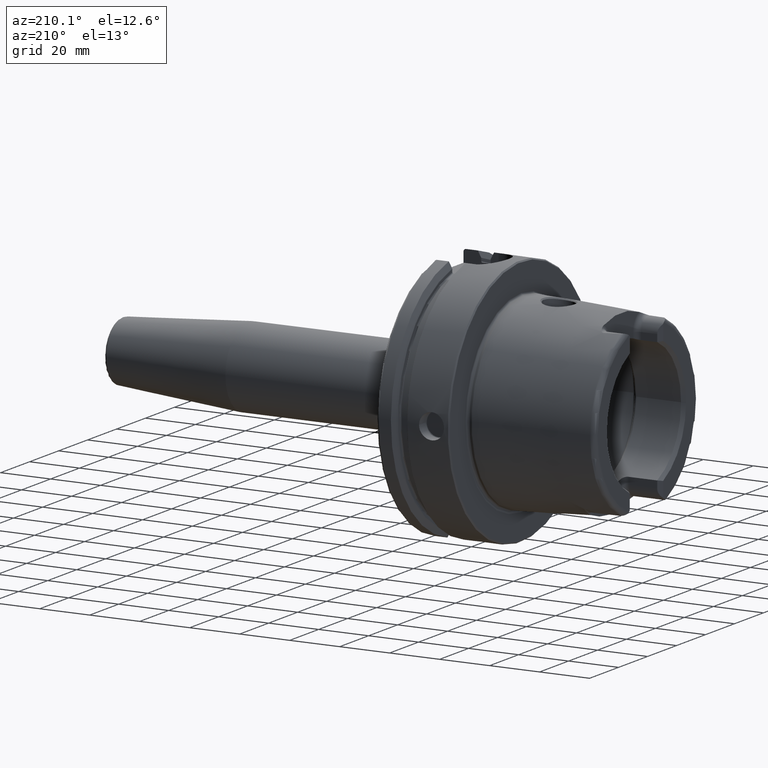
[diagram: clean part render]
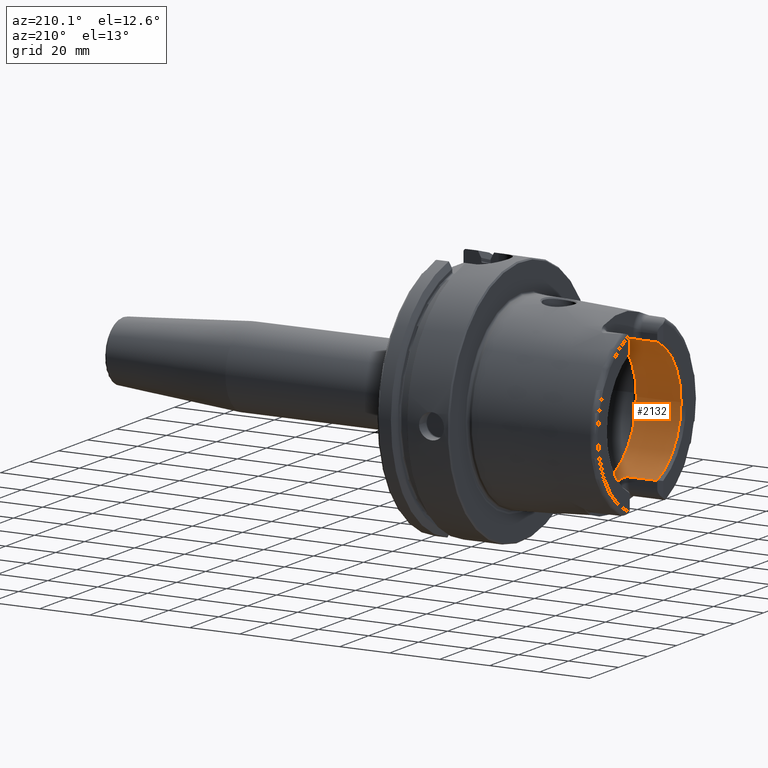
[diagram: same view with one face highlighted and labeled with its STEP entity id]
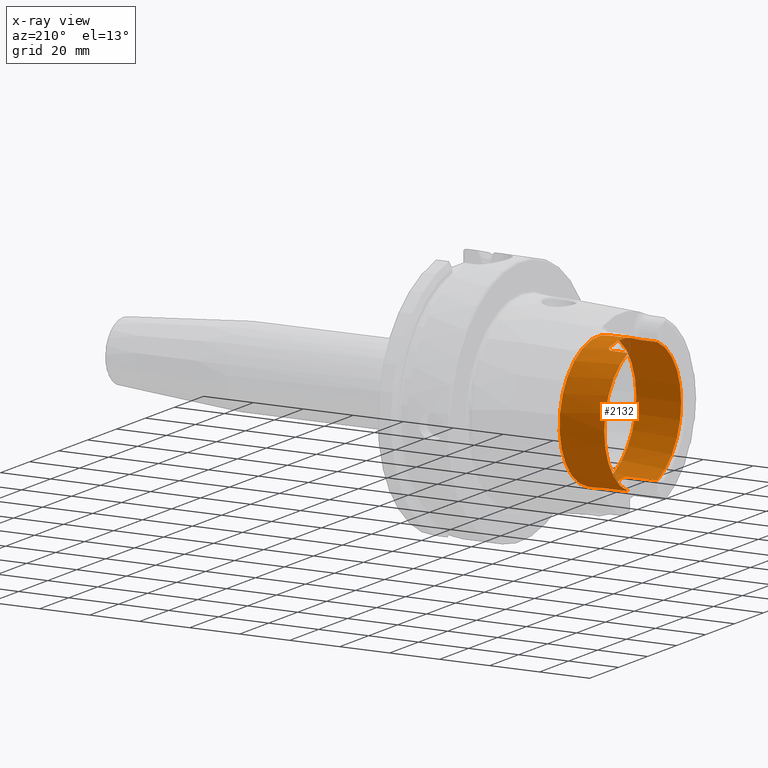
[diagram: x-ray of the same camera — body ghosted, the highlighted face saturated]
A machine part, auxiliary view. The second image highlights one B-rep face of the part: STEP entity #2132.
The next image is the same camera in x-ray: the body ghosted, the highlighted face saturated — about 1% of this face is hidden behind the body in this view.
In plain terms, the highlighted cylindrical surface (bore or boss wall) has radius 26.5 mm, axis along (-1, 0, 0).
Its self-contained STEP definition (entity closure, byte-faithful):
#80=B_SPLINE_CURVE_WITH_KNOTS('',3,(#4450,#4451,#4452,#4453,#4454,#4455,
#4456,#4457,#4458,#4459),.UNSPECIFIED.,.F.,.F.,(4,2,2,2,4),(0.307245873696209,
0.387318131676521,0.467390389656833,0.542677307505841,0.617964225354849),
 .UNSPECIFIED.);
#81=B_SPLINE_CURVE_WITH_KNOTS('',3,(#4468,#4469,#4470,#4471,#4472,#4473,
#4474,#4475,#4476,#4477),.UNSPECIFIED.,.F.,.F.,(4,2,2,2,4),(0.61796422535485,
0.694491364966707,0.771018504578565,0.849854597041439,0.928690689504313),
 .UNSPECIFIED.);
#82=B_SPLINE_CURVE_WITH_KNOTS('',3,(#4490,#4491,#4492,#4493,#4494,#4495,
#4496,#4497,#4498,#4499),.UNSPECIFIED.,.F.,.F.,(4,2,2,2,4),(0.617964225354849,
0.693251143203857,0.768538061052865,0.848610319033177,0.928682577013489),
 .UNSPECIFIED.);
#83=B_SPLINE_CURVE_WITH_KNOTS('',3,(#4519,#4520,#4521,#4522,#4523,#4524,
#4525,#4526,#4527,#4528),.UNSPECIFIED.,.F.,.F.,(4,2,2,2,4),(0.307245873696209,
0.387318131676521,0.467390389656833,0.542677307505841,0.617964225354849),
 .UNSPECIFIED.);
#206=CYLINDRICAL_SURFACE('',#2396,26.5);
#310=FACE_OUTER_BOUND('',#442,.T.);
#442=EDGE_LOOP('',(#1896,#1897,#1898,#1899,#1900,#1901,#1902,#1903,#1904,
#1905,#1906,#1907,#1908,#1909,#1910,#1911,#1912));
#495=LINE('',#3234,#603);
#503=LINE('',#3309,#611);
#507=LINE('',#3373,#615);
#566=LINE('',#4515,#674);
#570=LINE('',#4563,#678);
#603=VECTOR('',#2597,10.);
#611=VECTOR('',#2643,10.);
#615=VECTOR('',#2665,10.);
#674=VECTOR('',#2944,10.);
#678=VECTOR('',#2988,26.5);
#724=CIRCLE('',#2250,26.5);
#725=CIRCLE('',#2251,26.5);
#788=CIRCLE('',#2375,26.5);
#793=CIRCLE('',#2387,26.5);
#794=CIRCLE('',#2390,26.5);
#797=CIRCLE('',#2397,26.5);
#798=CIRCLE('',#2398,26.5);
#869=VERTEX_POINT('',#3224);
#872=VERTEX_POINT('',#3232);
#881=VERTEX_POINT('',#3281);
#883=VERTEX_POINT('',#3287);
#884=VERTEX_POINT('',#3289);
#890=VERTEX_POINT('',#3307);
#896=VERTEX_POINT('',#3340);
#901=VERTEX_POINT('',#3372);
#1008=VERTEX_POINT('',#4448);
#1010=VERTEX_POINT('',#4467);
#1014=VERTEX_POINT('',#4488);
#1015=VERTEX_POINT('',#4489);
#1017=VERTEX_POINT('',#4509);
#1019=VERTEX_POINT('',#4560);
#1020=VERTEX_POINT('',#4561);
#1100=EDGE_CURVE('',#869,#872,#495,.T.);
#1113=EDGE_CURVE('',#883,#884,#724,.T.);
#1114=EDGE_CURVE('',#884,#881,#725,.T.);
#1123=EDGE_CURVE('',#883,#890,#503,.T.);
#1136=EDGE_CURVE('',#901,#896,#507,.T.);
#1294=EDGE_CURVE('',#1008,#890,#80,.T.);
#1298=EDGE_CURVE('',#901,#1010,#81,.T.);
#1304=EDGE_CURVE('',#1014,#1015,#82,.T.);
#1310=EDGE_CURVE('',#1017,#1015,#788,.T.);
#1313=EDGE_CURVE('',#1014,#881,#566,.T.);
#1316=EDGE_CURVE('',#1017,#872,#83,.T.);
#1320=EDGE_CURVE('',#1008,#1010,#793,.T.);
#1322=EDGE_CURVE('',#869,#896,#794,.T.);
#1326=EDGE_CURVE('',#1019,#1020,#797,.T.);
#1327=EDGE_CURVE('',#1019,#884,#570,.T.);
#1328=EDGE_CURVE('',#1020,#1019,#798,.T.);
#1896=ORIENTED_EDGE('',*,*,#1326,.F.);
#1897=ORIENTED_EDGE('',*,*,#1327,.T.);
#1898=ORIENTED_EDGE('',*,*,#1113,.F.);
#1899=ORIENTED_EDGE('',*,*,#1123,.T.);
#1900=ORIENTED_EDGE('',*,*,#1294,.F.);
#1901=ORIENTED_EDGE('',*,*,#1320,.T.);
#1902=ORIENTED_EDGE('',*,*,#1298,.F.);
#1903=ORIENTED_EDGE('',*,*,#1136,.T.);
#1904=ORIENTED_EDGE('',*,*,#1322,.F.);
#1905=ORIENTED_EDGE('',*,*,#1100,.T.);
#1906=ORIENTED_EDGE('',*,*,#1316,.F.);
#1907=ORIENTED_EDGE('',*,*,#1310,.T.);
#1908=ORIENTED_EDGE('',*,*,#1304,.F.);
#1909=ORIENTED_EDGE('',*,*,#1313,.T.);
#1910=ORIENTED_EDGE('',*,*,#1114,.F.);
#1911=ORIENTED_EDGE('',*,*,#1327,.F.);
#1912=ORIENTED_EDGE('',*,*,#1328,.F.);
#2132=ADVANCED_FACE('',(#310),#206,.F.);
#2250=AXIS2_PLACEMENT_3D('',#3290,#2621,#2622);
#2251=AXIS2_PLACEMENT_3D('',#3291,#2623,#2624);
#2375=AXIS2_PLACEMENT_3D('',#4510,#2937,#2938);
#2387=AXIS2_PLACEMENT_3D('',#4537,#2965,#2966);
#2390=AXIS2_PLACEMENT_3D('',#4552,#2971,#2972);
#2396=AXIS2_PLACEMENT_3D('',#4559,#2984,#2985);
#2397=AXIS2_PLACEMENT_3D('',#4562,#2986,#2987);
#2398=AXIS2_PLACEMENT_3D('',#4564,#2989,#2990);
#2597=DIRECTION('',(1.,0.,0.));
#2621=DIRECTION('center_axis',(1.,0.,0.));
#2622=DIRECTION('ref_axis',(0.,-1.,0.));
#2623=DIRECTION('center_axis',(1.,0.,0.));
#2624=DIRECTION('ref_axis',(0.,-1.,0.));
#2643=DIRECTION('',(1.,0.,0.));
#2665=DIRECTION('',(-1.,0.,0.));
#2937=DIRECTION('center_axis',(-1.,0.,0.));
#2938=DIRECTION('ref_axis',(0.,1.,0.));
#2944=DIRECTION('',(-1.,0.,0.));
#2965=DIRECTION('center_axis',(-1.,0.,0.));
#2966=DIRECTION('ref_axis',(0.,1.,0.));
#2971=DIRECTION('center_axis',(1.,0.,0.));
#2972=DIRECTION('ref_axis',(0.,-1.,0.));
#2984=DIRECTION('center_axis',(-1.,0.,0.));
#2985=DIRECTION('ref_axis',(0.,1.,0.));
#2986=DIRECTION('center_axis',(-1.,0.,0.));
#2987=DIRECTION('ref_axis',(0.,0.,1.));
#2988=DIRECTION('',(-1.,0.,0.));
#2989=DIRECTION('center_axis',(-1.,0.,0.));
#2990=DIRECTION('ref_axis',(0.,0.,1.));
#3224=CARTESIAN_POINT('',(-48.5,10.01,-24.5367051577835));
#3232=CARTESIAN_POINT('',(-37.,10.01,-24.5367051577835));
#3234=CARTESIAN_POINT('',(-40.2903629710818,10.01,-24.5367051577835));
#3281=CARTESIAN_POINT('',(-48.5,-10.01,-24.5367051577835));
#3287=CARTESIAN_POINT('',(-48.5,-10.01,24.5367051577835));
#3289=CARTESIAN_POINT('',(-48.5,-26.5,3.24531401774049E-15));
#3290=CARTESIAN_POINT('Origin',(-48.5,0.,0.));
#3291=CARTESIAN_POINT('Origin',(-48.5,0.,0.));
#3307=CARTESIAN_POINT('',(-42.,-10.01,24.5367051577835));
#3309=CARTESIAN_POINT('',(-40.2903629710818,-10.01,24.5367051577835));
#3340=CARTESIAN_POINT('',(-48.5,10.01,24.5367051577835));
#3372=CARTESIAN_POINT('',(-42.,10.01,24.5367051577835));
#3373=CARTESIAN_POINT('',(-40.2903629710818,10.01,24.5367051577835));
#4448=CARTESIAN_POINT('',(-40.,-8.01,25.2604414054862));
#4450=CARTESIAN_POINT('Ctrl Pts',(-40.,-8.01,25.2604414054862));
#4451=CARTESIAN_POINT('Ctrl Pts',(-40.,-8.26442271458071,25.1797648285777));
#4452=CARTESIAN_POINT('Ctrl Pts',(-40.0513332778729,-8.53503831367686,25.0892968127514));
#4453=CARTESIAN_POINT('Ctrl Pts',(-40.2604388709541,-9.03317850506395,24.9142806373643));
#4454=CARTESIAN_POINT('Ctrl Pts',(-40.4182028025644,-9.2607746884821,24.8299262887475));
#4455=CARTESIAN_POINT('Ctrl Pts',(-40.7762398849713,-9.61038047170956,24.6966285655713));
#4456=CARTESIAN_POINT('Ctrl Pts',(-40.996584045901,-9.75993653512726,24.6374761492843));
#4457=CARTESIAN_POINT('Ctrl Pts',(-41.4829332858843,-9.95981108540838,24.557356442995));
#4458=CARTESIAN_POINT('Ctrl Pts',(-41.74904360717,-10.01,24.5367051577835));
#4459=CARTESIAN_POINT('Ctrl Pts',(-42.,-10.01,24.5367051577835));
#4467=CARTESIAN_POINT('',(-40.,8.01,25.2604414054862));
#4468=CARTESIAN_POINT('Ctrl Pts',(-42.,10.01,24.5367051577835));
#4469=CARTESIAN_POINT('Ctrl Pts',(-41.7449095346271,10.01,24.5367051577835));
#4470=CARTESIAN_POINT('Ctrl Pts',(-41.4747619014646,9.95816285425487,24.5580391842641));
#4471=CARTESIAN_POINT('Ctrl Pts',(-40.9823460284033,9.75229566196282,24.640515927451));
#4472=CARTESIAN_POINT('Ctrl Pts',(-40.7599680829949,9.59839520774108,24.7013267120605));
#4473=CARTESIAN_POINT('Ctrl Pts',(-40.4063494382929,9.24477656303909,24.8358806096526));
#4474=CARTESIAN_POINT('Ctrl Pts',(-40.2529543645221,9.01930384320105,24.9192727261742));
#4475=CARTESIAN_POINT('Ctrl Pts',(-40.049776768453,8.52719637786957,25.0919293188873));
#4476=CARTESIAN_POINT('Ctrl Pts',(-40.,8.26049490494288,25.1810103236462));
#4477=CARTESIAN_POINT('Ctrl Pts',(-40.,8.01,25.2604414054862));
#4488=CARTESIAN_POINT('',(-37.,-10.01,-24.5367051577835));
#4489=CARTESIAN_POINT('',(-35.,-8.01,-25.2604414054862));
#4490=CARTESIAN_POINT('Ctrl Pts',(-37.,-10.01,-24.5367051577835));
#4491=CARTESIAN_POINT('Ctrl Pts',(-36.74904360717,-10.01,-24.5367051577835));
#4492=CARTESIAN_POINT('Ctrl Pts',(-36.4829332858843,-9.95981108540838,-24.557356442995));
#4493=CARTESIAN_POINT('Ctrl Pts',(-35.9965840459011,-9.75993653512726,-24.6374761492843));
#4494=CARTESIAN_POINT('Ctrl Pts',(-35.7762398849713,-9.61038047170956,-24.6966285655713));
#4495=CARTESIAN_POINT('Ctrl Pts',(-35.4182028025644,-9.2607746884821,-24.8299262887475));
#4496=CARTESIAN_POINT('Ctrl Pts',(-35.2604388709541,-9.03317850506395,-24.9142806373643));
#4497=CARTESIAN_POINT('Ctrl Pts',(-35.0513332778729,-8.53503831367686,-25.0892968127514));
#4498=CARTESIAN_POINT('Ctrl Pts',(-35.,-8.26442271458071,-25.1797648285777));
#4499=CARTESIAN_POINT('Ctrl Pts',(-35.,-8.01,-25.2604414054862));
#4509=CARTESIAN_POINT('',(-35.,8.01,-25.2604414054862));
#4510=CARTESIAN_POINT('Origin',(-35.,0.,0.));
#4515=CARTESIAN_POINT('',(-40.2903629710818,-10.01,-24.5367051577835));
#4519=CARTESIAN_POINT('Ctrl Pts',(-35.,8.01,-25.2604414054862));
#4520=CARTESIAN_POINT('Ctrl Pts',(-35.,8.26442271458071,-25.1797648285777));
#4521=CARTESIAN_POINT('Ctrl Pts',(-35.0513332778729,8.53503831367686,-25.0892968127514));
#4522=CARTESIAN_POINT('Ctrl Pts',(-35.2604388709541,9.03317850506395,-24.9142806373643));
#4523=CARTESIAN_POINT('Ctrl Pts',(-35.4182028025644,9.2607746884821,-24.8299262887475));
#4524=CARTESIAN_POINT('Ctrl Pts',(-35.7762398849713,9.61038047170956,-24.6966285655713));
#4525=CARTESIAN_POINT('Ctrl Pts',(-35.9965840459011,9.75993653512726,-24.6374761492843));
#4526=CARTESIAN_POINT('Ctrl Pts',(-36.4829332858843,9.95981108540838,-24.557356442995));
#4527=CARTESIAN_POINT('Ctrl Pts',(-36.74904360717,10.01,-24.5367051577835));
#4528=CARTESIAN_POINT('Ctrl Pts',(-37.,10.01,-24.5367051577835));
#4537=CARTESIAN_POINT('Origin',(-40.,0.,0.));
#4552=CARTESIAN_POINT('Origin',(-48.5,0.,0.));
#4559=CARTESIAN_POINT('Origin',(-40.2903629710818,0.,0.));
#4560=CARTESIAN_POINT('',(-30.5807259421637,-26.5,3.24531401774049E-15));
#4561=CARTESIAN_POINT('',(-30.5807259421637,-3.24531401774049E-15,-26.5));
#4562=CARTESIAN_POINT('Origin',(-30.5807259421637,0.,0.));
#4563=CARTESIAN_POINT('',(-40.2903629710818,-26.5,3.24531401774049E-15));
#4564=CARTESIAN_POINT('Origin',(-30.5807259421637,0.,0.));